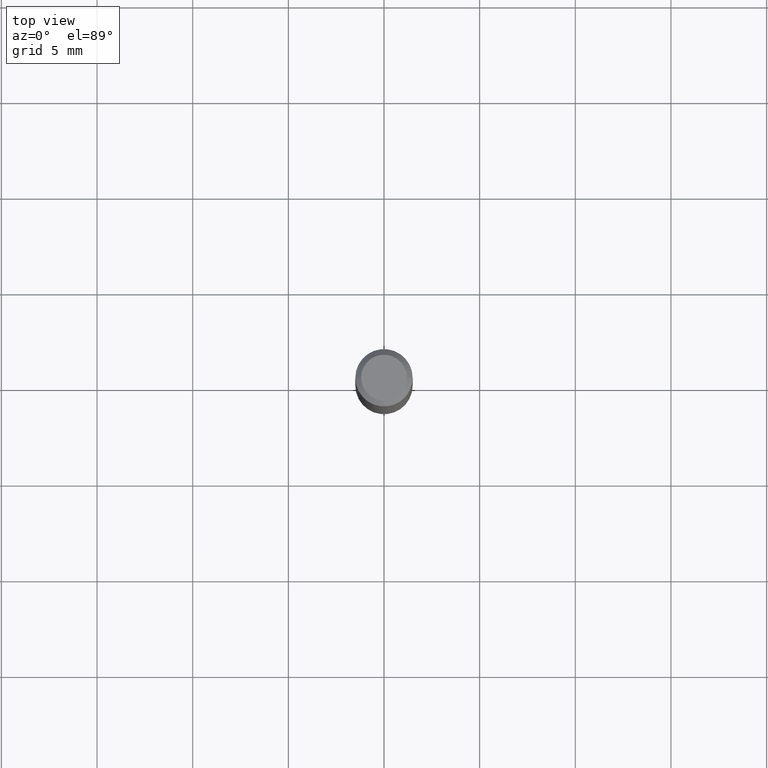
[diagram: clean part render]
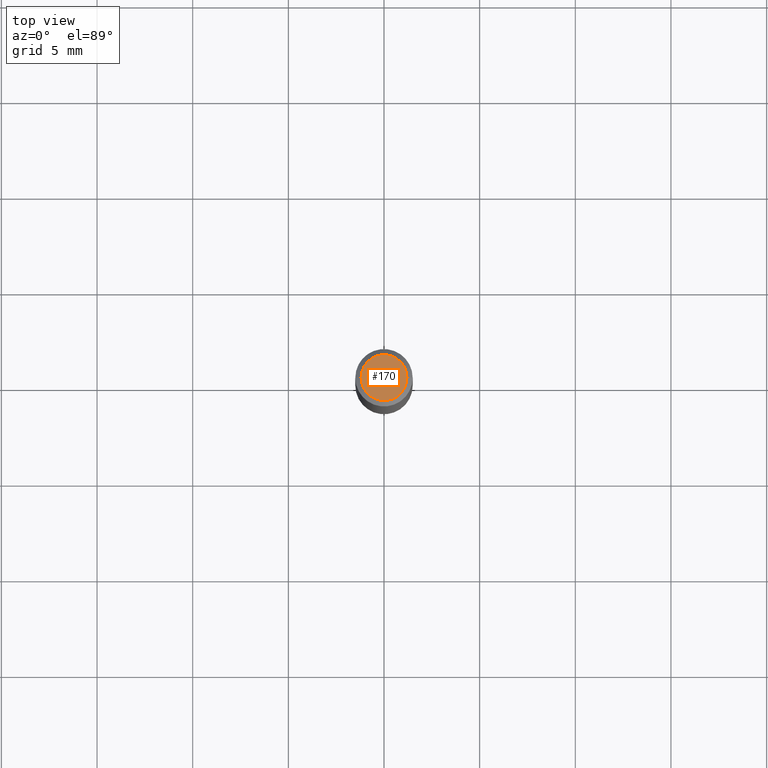
[diagram: same view with one face highlighted and labeled with its STEP entity id]
A machine part, top view. The second image highlights one B-rep face of the part: STEP entity #170.
In plain terms, the highlighted planar face has unit normal (0, -0, -1).
Its self-contained STEP definition (entity closure, byte-faithful):
#38 = EDGE_CURVE ( 'NONE', #383, #101, #307, .T. ) ;
#101 = VERTEX_POINT ( 'NONE', #310 ) ;
#108 = CARTESIAN_POINT ( 'NONE',  ( 8.265746106709734507E-48, -1.180129479067563789E-33, -3.380025165646692144E-19 ) ) ;
#139 = AXIS2_PLACEMENT_3D ( 'NONE', #108, #227, #242 ) ;
#141 = DIRECTION ( 'NONE',  ( -2.445468806185136597E-29, 3.491481338843145583E-15, 1.000000000000000000 ) ) ;
#170 = ADVANCED_FACE ( 'NONE', ( #226 ), #441, .F. ) ;
#177 = CARTESIAN_POINT ( 'NONE',  ( 4.132873053354867254E-48, -5.900647395337818946E-34, -1.690012582823346072E-19 ) ) ;
#191 = AXIS2_PLACEMENT_3D ( 'NONE', #177, #283, #289 ) ;
#226 = FACE_OUTER_BOUND ( 'NONE', #399, .T. ) ;
#227 = DIRECTION ( 'NONE',  ( -2.445468806185136597E-29, 3.491481338843145583E-15, 1.000000000000000000 ) ) ;
#232 = CARTESIAN_POINT ( 'NONE',  ( -0.04724000000000000421, 3.504923541997677355E-16, -3.380025165670481712E-19 ) ) ;
#242 = DIRECTION ( 'NONE',  ( 1.000000000000000000, -6.982962677686266711E-15, 4.876185090822587894E-29 ) ) ;
#246 = ORIENTED_EDGE ( 'NONE', *, *, #322, .T. ) ;
#251 = CARTESIAN_POINT ( 'NONE',  ( 8.265746106709734507E-48, -1.180129479067563789E-33, -3.380025165646692144E-19 ) ) ;
#259 = DIRECTION ( 'NONE',  ( 1.000000000000000000, -6.982962677686266711E-15, 4.876185090822587894E-29 ) ) ;
#277 = CIRCLE ( 'NONE', #472, 0.04724000000000000421 ) ;
#283 = DIRECTION ( 'NONE',  ( 2.438088387897960049E-29, -3.491481338843145188E-15, -1.000000000000000000 ) ) ;
#289 = DIRECTION ( 'NONE',  ( -1.000000000000000000, 6.982962677686265922E-15, -4.876176775795935793E-29 ) ) ;
#307 = CIRCLE ( 'NONE', #139, 0.04724000000000000421 ) ;
#310 = CARTESIAN_POINT ( 'NONE',  ( 0.04724000000000000421, -3.852183633974369345E-16, -3.380025165621689721E-19 ) ) ;
#322 = EDGE_CURVE ( 'NONE', #101, #383, #277, .T. ) ;
#383 = VERTEX_POINT ( 'NONE', #232 ) ;
#394 = ORIENTED_EDGE ( 'NONE', *, *, #38, .T. ) ;
#399 = EDGE_LOOP ( 'NONE', ( #394, #246 ) ) ;
#441 = PLANE ( 'NONE',  #191 ) ;
#472 = AXIS2_PLACEMENT_3D ( 'NONE', #251, #141, #259 ) ;